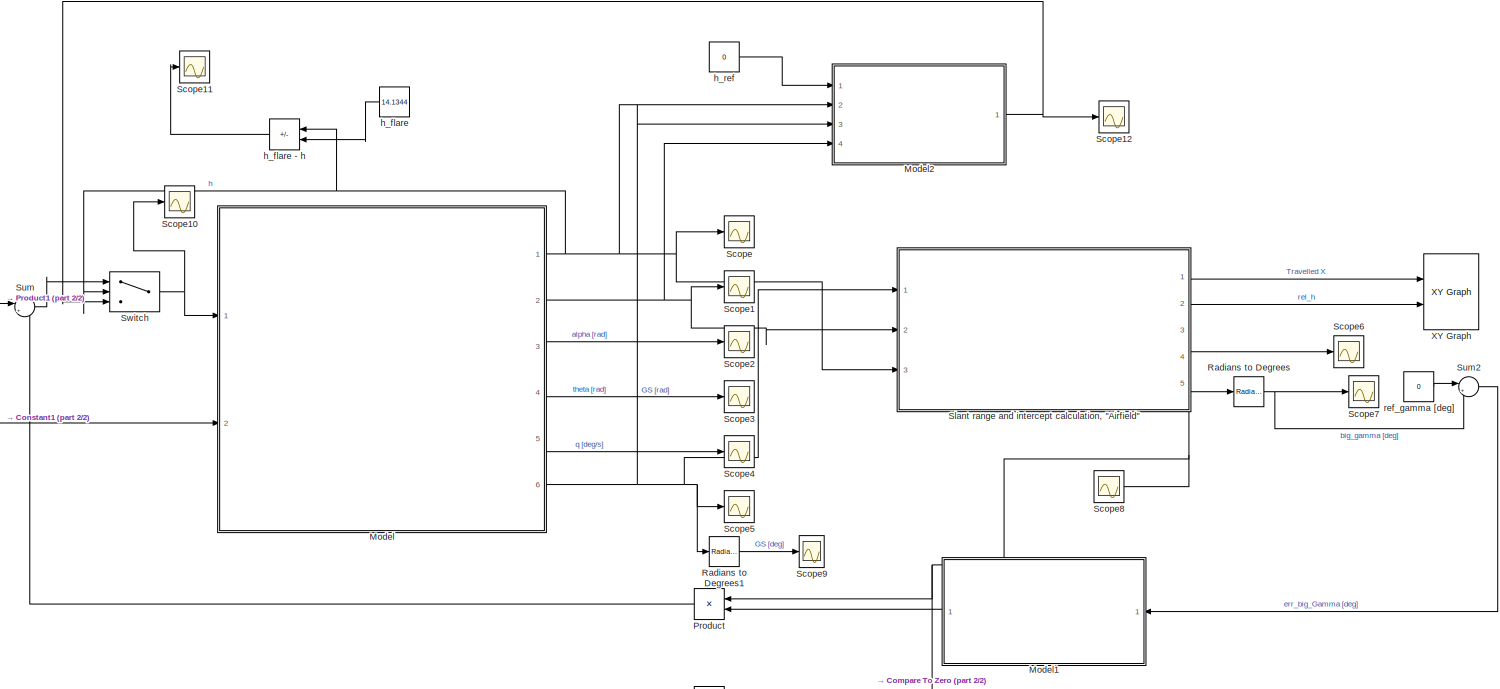
[diagram: root canvas - part 1/2, most of the canvas]
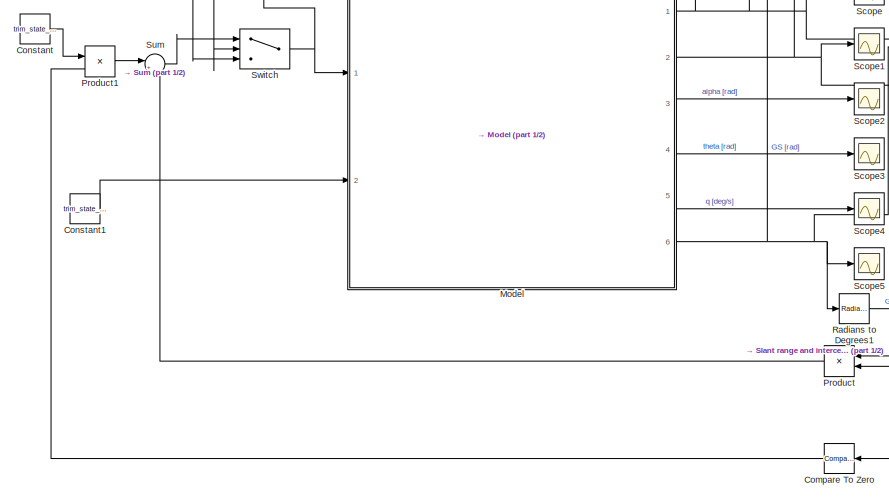
[diagram: root canvas - part 2/2, bottom left region]
MODEL slx_562e829274c4
KIND model
CONFIG AbsTol = auto
CONFIG EnableMultiTasking = off
CONFIG FixedStep = auto
CONFIG MaxStep = auto
CONFIG MinStep = auto
CONFIG RelTol = 1e-3
CONFIG SampleTimeConstraint = Unconstrained
CONFIG SolverName = VariableStepAuto
CONFIG StartTime = 0.0
CONFIG StopTime = 138
BLOCK [Reference] Compare To Zero  REF=simulink/Logic and Bit
Operations/Compare
To Zero
  Ports = [1, 1]
  SourceBlock = simulink/Logic and Bit\nOperations/Compare\nTo Zero
  SourceProductBaseCode = SL
  SourceType = Compare To Zero
BLOCK [Constant] Constant
  Value = trim_state_lo(5)
BLOCK [Constant] Constant1
  Value = trim_state_lo(7)
BLOCK [ModelReference] Model
  ModelNameDialog = AC_AFCS_a.slx
  ModelReferenceVersion = 3.1
  Ports = [2, 6]
BLOCK [ModelReference] Model1
  ModelNameDialog = Glideslope_coupler_a.slx
  ModelReferenceVersion = 1.0
  Ports = [1, 1]
BLOCK [ModelReference] Model2
  ModelNameDialog = flare_controller_a.slx
  ModelReferenceVersion = 1.1
  Ports = [4, 1]
BLOCK [Product] Product
  Ports = [2, 1]
BLOCK [Product] Product1
  Ports = [2, 1]
BLOCK [Reference] Radians to Degrees  REF=simulink_extras/Transformations/Radians
to Degrees
  Ports = [1, 1]
  SourceBlock = simulink_extras/Transformations/Radians\nto Degrees
  SourceProductBaseCode = SL
  SourceType = RadiansToDegrees
BLOCK [Reference] Radians to Degrees1  REF=simulink_extras/Transformations/Radians
to Degrees
  Ports = [1, 1]
  SourceBlock = simulink_extras/Transformations/Radians\nto Degrees
  SourceProductBaseCode = SL
  SourceType = RadiansToDegrees
BLOCK [Scope] Scope
  Floating = off
  NumInputPorts = 1
  Ports = [1]
  ScopeSpecificationString = Simulink.scopes.TimeScopeBlockCfg('CurrentConfiguration', extmgr.ConfigurationSet(extmgr.Configuration('Core','General UI',true),extmgr.Configuration('Core','Source UI',true),extmgr.Configuration('Sources','WiredSimulink',true),extmgr.Configuration('Visuals','Time Domain',true,'SerializedDisplays',{struct('MinYLimReal','2921.91607','MaxYLimReal','3076.3444','YLabelReal','','MinYLimMag','2921.91607...<+1449ch>
BLOCK [Scope] Scope1
  Floating = off
  NumInputPorts = 1
  Ports = [1]
  ScopeSpecificationString = Simulink.scopes.TimeScopeBlockCfg('CurrentConfiguration', extmgr.ConfigurationSet(extmgr.Configuration('Core','General UI',true),extmgr.Configuration('Core','Source UI',true),extmgr.Configuration('Sources','WiredSimulink',true,'DataLoggingVariableName','ScopeData1'),extmgr.Configuration('Visuals','Time Domain',true,'SerializedDisplays',{struct('MinYLimReal','292.66224','MaxYLimReal','316.42389','Y...<+1380ch>
BLOCK [Scope] Scope10
  Floating = off
  NumInputPorts = 1
  Ports = [1]
  ScopeSpecificationString = Simulink.scopes.TimeScopeBlockCfg('CurrentConfiguration', extmgr.ConfigurationSet(extmgr.Configuration('Core','General UI',true),extmgr.Configuration('Core','Source UI',true),extmgr.Configuration('Sources','WiredSimulink',true,'DataLoggingVariableName','ScopeData1'),extmgr.Configuration('Visuals','Time Domain',true,'SerializedDisplays',{struct('MinYLimReal','-3823550.13294','MaxYLimReal','424845.1...<+1508ch>
BLOCK [Scope] Scope11
  Floating = off
  NumInputPorts = 1
  Ports = [1]
  ScopeSpecificationString = Simulink.scopes.TimeScopeBlockCfg('CurrentConfiguration', extmgr.ConfigurationSet(extmgr.Configuration('Core','General UI',true),extmgr.Configuration('Core','Source UI',true),extmgr.Configuration('Sources','WiredSimulink',true,'DataLoggingVariableName','ScopeData2'),extmgr.Configuration('Visuals','Time Domain',true,'SerializedDisplays',{struct('MinYLimReal','2719.65848','MaxYLimReal','5274.21402',...<+1438ch>
BLOCK [Scope] Scope12
  Floating = off
  NumInputPorts = 1
  Ports = [1]
  ScopeSpecificationString = Simulink.scopes.TimeScopeBlockCfg('CurrentConfiguration', extmgr.ConfigurationSet(extmgr.Configuration('Core','General UI',true),extmgr.Configuration('Core','Source UI',true),extmgr.Configuration('Sources','WiredSimulink',true,'DataLoggingVariableName','ScopeData3'),extmgr.Configuration('Visuals','Time Domain',true,'SerializedDisplays',{struct('MinYLimReal','-3787046.75814','MaxYLimReal','-100334....<+1461ch>
BLOCK [Scope] Scope2
  Floating = off
  NumInputPorts = 1
  Ports = [1]
  ScopeSpecificationString = Simulink.scopes.TimeScopeBlockCfg('CurrentConfiguration', extmgr.ConfigurationSet(extmgr.Configuration('Core','General UI',true),extmgr.Configuration('Core','Source UI',true),extmgr.Configuration('Sources','WiredSimulink',true,'DataLoggingVariableName','ScopeData2'),extmgr.Configuration('Visuals','Time Domain',true,'SerializedDisplays',{struct('MinYLimReal','-39.06369','MaxYLimReal','303.50025','Y...<+1376ch>
BLOCK [Scope] Scope3
  Floating = off
  NumInputPorts = 1
  Ports = [1]
  ScopeSpecificationString = Simulink.scopes.TimeScopeBlockCfg('CurrentConfiguration', extmgr.ConfigurationSet(extmgr.Configuration('Core','General UI',true),extmgr.Configuration('Core','Source UI',true),extmgr.Configuration('Sources','WiredSimulink',true,'DataLoggingVariableName','ScopeData3'),extmgr.Configuration('Visuals','Time Domain',true,'SerializedDisplays',{struct('MinYLimReal','-0.1481','MaxYLimReal','0.15946','YLabe...<+1368ch>
BLOCK [Scope] Scope4
  Floating = off
  NumInputPorts = 1
  Ports = [1]
  ScopeSpecificationString = Simulink.scopes.TimeScopeBlockCfg('CurrentConfiguration', extmgr.ConfigurationSet(extmgr.Configuration('Core','General UI',true),extmgr.Configuration('Core','Source UI',true),extmgr.Configuration('Sources','WiredSimulink',true,'DataLoggingVariableName','ScopeData4'),extmgr.Configuration('Visuals','Time Domain',true,'SerializedDisplays',{struct('MinYLimReal','-21.32493','MaxYLimReal','20.62032','YL...<+1372ch>
BLOCK [Scope] Scope5
  Floating = off
  NumInputPorts = 1
  Ports = [1]
  ScopeSpecificationString = Simulink.scopes.TimeScopeBlockCfg('CurrentConfiguration', extmgr.ConfigurationSet(extmgr.Configuration('Core','General UI',true),extmgr.Configuration('Core','Source UI',true),extmgr.Configuration('Sources','WiredSimulink',true,'DataLoggingVariableName','ScopeData5'),extmgr.Configuration('Visuals','Time Domain',true,'SerializedDisplays',{struct('MinYLimReal','-0.23897','MaxYLimReal','1.2096','YLabe...<+1705ch>
BLOCK [Scope] Scope6
  Floating = off
  NumInputPorts = 1
  Ports = [1]
  ScopeSpecificationString = Simulink.scopes.TimeScopeBlockCfg('CurrentConfiguration', extmgr.ConfigurationSet(extmgr.Configuration('Core','General UI',true),extmgr.Configuration('Core','Source UI',true),extmgr.Configuration('Sources','WiredSimulink',true,'DataLoggingVariableName','ScopeData1'),extmgr.Configuration('Visuals','Time Domain',true,'SerializedDisplays',{struct('MinYLimReal','-2573754.0059','MaxYLimReal','14328391....<+1523ch>
BLOCK [Scope] Scope7
  Floating = off
  NumInputPorts = 1
  Ports = [1]
  ScopeSpecificationString = Simulink.scopes.TimeScopeBlockCfg('CurrentConfiguration', extmgr.ConfigurationSet(extmgr.Configuration('Core','General UI',true),extmgr.Configuration('Core','Source UI',true),extmgr.Configuration('Sources','WiredSimulink',true,'DataLoggingVariableName','ScopeData2'),extmgr.Configuration('Visuals','Time Domain',true,'SerializedDisplays',{struct('MinYLimReal','-0.26621','MaxYLimReal','0.21298','YLab...<+1377ch>
BLOCK [Scope] Scope8
  Floating = off
  NumInputPorts = 1
  Ports = [1]
  ScopeSpecificationString = Simulink.scopes.TimeScopeBlockCfg('CurrentConfiguration', extmgr.ConfigurationSet(extmgr.Configuration('Core','General UI',true),extmgr.Configuration('Core','Source UI',true),extmgr.Configuration('Sources','WiredSimulink',true,'DataLoggingVariableName','ScopeData1'),extmgr.Configuration('Visuals','Time Domain',true,'SerializedDisplays',{struct('MinYLimReal','-0.125','MaxYLimReal','1.125','YLabelRe...<+1406ch>
BLOCK [Scope] Scope9
  Floating = off
  NumInputPorts = 1
  Ports = [1]
  ScopeSpecificationString = Simulink.scopes.TimeScopeBlockCfg('CurrentConfiguration', extmgr.ConfigurationSet(extmgr.Configuration('Core','General UI',true),extmgr.Configuration('Core','Source UI',true),extmgr.Configuration('Sources','WiredSimulink',true,'DataLoggingVariableName','ScopeData1'),extmgr.Configuration('Visuals','Time Domain',true,'SerializedDisplays',{struct('MinYLimReal','-4.16825','MaxYLimReal','-0.45834','YLa...<+1388ch>
BLOCK [ModelReference] Slant range and intercept calculation, "Airfield"
  ModelNameDialog = Airfield_a.slx
  ModelReferenceVersion = 1.0
  PortSchema = {"entries":[{"content":{"sides":[{"content":{"connectorIds":["In3","In2","In1"]},"type":"ConnectorPlacement.EquallySpacedRectSide","uuid":"25984121-e228-465d-961c-6ec86661cfc1"},{"content":{"connectorIds":["Out3","Out4","Out1","Out2"],"side":"RIGHT"},"type":"ConnectorPlacement.EquallySpacedRectSide","uuid":"af8e0693-a0d7-4808-97bc-107bf2fae1ee"},{"content":{"connectorIds":[],"side":"TOP"},"type":"...<+423ch>
  Ports = [3, 5]
BLOCK [Sum] Sum
  Inputs = |++
  Ports = [2, 1]
BLOCK [Sum] Sum2
  Inputs = |+-
  Ports = [2, 1]
BLOCK [Switch] Switch
  InputSameDT = off
  SaturateOnIntegerOverflow = off
  Threshold = 3014
BLOCK [Reference] XY Graph  REF=simulink/Sinks/XY Graph
  Ports = [2]
  SourceBlock = simulink/Sinks/XY Graph
  SourceProductBaseCode = SL
  SourceType = XY scope.
BLOCK [Constant] h_flare
  Value = 14.1344
BLOCK [Sum] h_flare - h
  IconShape = rectangular
  Inputs = +-
  Ports = [2, 1]
BLOCK [Constant] h_ref
  Value = 0
BLOCK [Constant] ref_gamma [deg]
  Value = 0
LINE Compare To Zero:1 -> Product1:2
LINE Constant1:1 -> Model:2
LINE Constant:1 -> Product1:1
LINE Model1:1 -> Product:2
NET Model2:1 -> Scope12:1, Switch:3
NET Model:1 -> Model2:2, Scope:1, Slant range and intercept calculation, "Airfield":3, Switch:2, h_flare - h:1
NET Model:2 -> Model2:4, Scope1:1, Slant range and intercept calculation, "Airfield":2
LINE Model:3 -> Scope2:1
LINE Model:4 -> Scope3:1
LINE Model:5 -> Scope4:1
NET Model:6 -> Model2:3, Radians to Degrees1:1, Scope5:1, Slant range and intercept calculation, "Airfield":1
LINE Product1:1 -> Sum:1
LINE Product:1 -> Sum:2
LINE Radians to Degrees1:1 -> Scope9:1
NET Radians to Degrees:1 -> Scope7:1, Sum2:2
LINE Slant range and intercept calculation, "Airfield":1 -> Scope6:1
LINE Slant range and intercept calculation, "Airfield":2 -> Radians to Degrees:1
LINE Slant range and intercept calculation, "Airfield":3 -> XY Graph:1
LINE Slant range and intercept calculation, "Airfield":4 -> XY Graph:2
NET Slant range and intercept calculation, "Airfield":5 -> Compare To Zero:1, Product:1, Scope8:1
LINE Sum2:1 -> Model1:1
LINE Sum:1 -> Switch:1
NET Switch:1 -> Model:1, Scope10:1
LINE h_flare - h:1 -> Scope11:1
LINE h_flare:1 -> h_flare - h:2
LINE h_ref:1 -> Model2:1
LINE ref_gamma [deg]:1 -> Sum2:1
note: NET lines group one-source signal fan-out (src -> all destinations, sorted); 1:1 wires keep LINE
